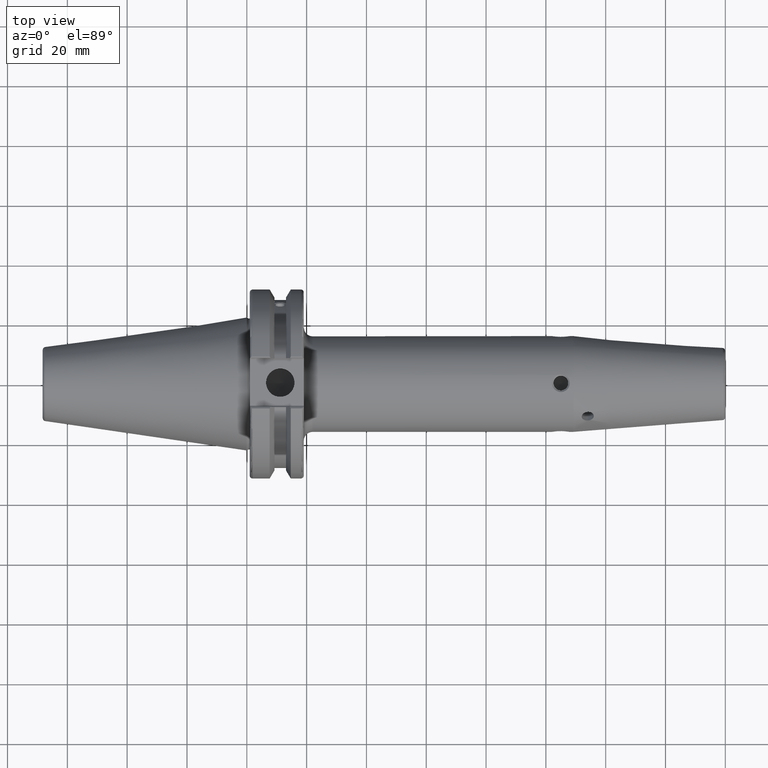
[diagram: clean part render]
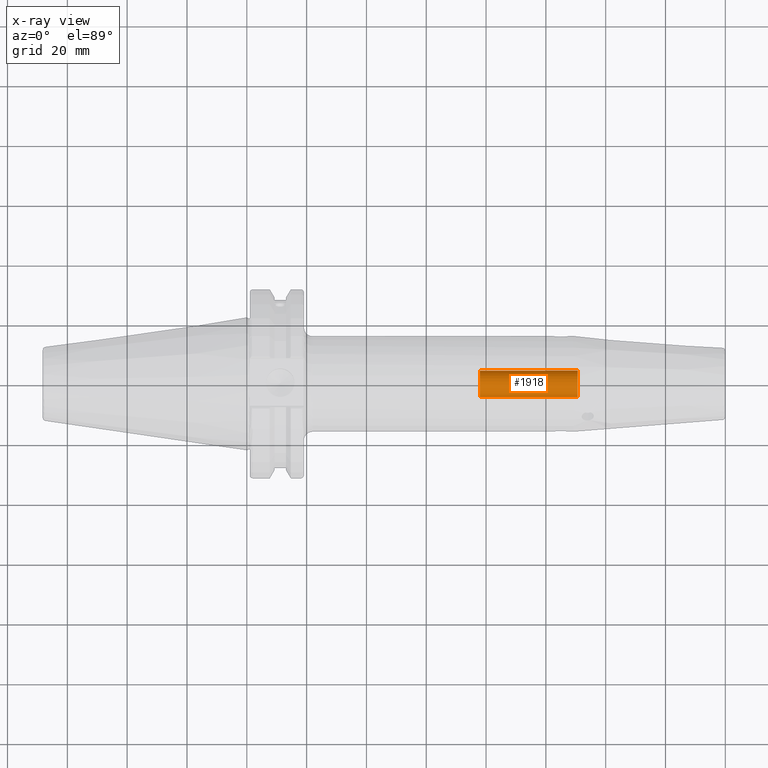
[diagram: x-ray — body ghosted, one internal face saturated and labeled with its STEP entity id]
A machine part, top view, then the same camera in x-ray: the body is ghosted and one INTERNAL B-rep face — a face not visible from any outside direction — is saturated and labeled: STEP entity #1918.
In plain terms, the highlighted cylindrical surface (bore or boss wall) has radius 4.4587 mm, axis along (1, 0, 0).
Its self-contained STEP definition (entity closure, byte-faithful):
#176=FACE_OUTER_BOUND('',#294,.T.);
#294=EDGE_LOOP('',(#1410,#1411,#1412,#1413,#1414));
#427=LINE('',#3999,#545);
#545=VECTOR('',#2372,4.458734);
#652=CIRCLE('',#2073,4.458734);
#653=CIRCLE('',#2074,4.458734);
#654=CIRCLE('',#2075,4.458734);
#829=VERTEX_POINT('',#3996);
#830=VERTEX_POINT('',#3998);
#831=VERTEX_POINT('',#4000);
#1048=EDGE_CURVE('',#829,#829,#652,.T.);
#1049=EDGE_CURVE('',#829,#830,#427,.T.);
#1050=EDGE_CURVE('',#831,#830,#653,.T.);
#1051=EDGE_CURVE('',#830,#831,#654,.T.);
#1410=ORIENTED_EDGE('',*,*,#1048,.F.);
#1411=ORIENTED_EDGE('',*,*,#1049,.T.);
#1412=ORIENTED_EDGE('',*,*,#1050,.F.);
#1413=ORIENTED_EDGE('',*,*,#1051,.F.);
#1414=ORIENTED_EDGE('',*,*,#1049,.F.);
#1864=CYLINDRICAL_SURFACE('',#2072,4.458734);
#1918=ADVANCED_FACE('',(#176),#1864,.F.);
#2072=AXIS2_PLACEMENT_3D('',#3995,#2368,#2369);
#2073=AXIS2_PLACEMENT_3D('',#3997,#2370,#2371);
#2074=AXIS2_PLACEMENT_3D('',#4001,#2373,#2374);
#2075=AXIS2_PLACEMENT_3D('',#4002,#2375,#2376);
#2368=DIRECTION('center_axis',(1.,0.,0.));
#2369=DIRECTION('ref_axis',(0.,1.,0.));
#2370=DIRECTION('center_axis',(-1.,0.,0.));
#2371=DIRECTION('ref_axis',(0.,1.,0.));
#2372=DIRECTION('',(-1.,0.,0.));
#2373=DIRECTION('center_axis',(1.,0.,0.));
#2374=DIRECTION('ref_axis',(0.,1.,0.));
#2375=DIRECTION('center_axis',(1.,0.,0.));
#2376=DIRECTION('ref_axis',(0.,1.,0.));
#3995=CARTESIAN_POINT('Origin',(-84.6677593786681,0.,0.));
#3996=CARTESIAN_POINT('',(110.64473154523,-4.458734,5.46037432134947E-16));
#3997=CARTESIAN_POINT('Origin',(110.64473154523,0.,0.));
#3998=CARTESIAN_POINT('',(77.9765163523599,-4.458734,-5.46037432134947E-16));
#3999=CARTESIAN_POINT('',(-84.6677593786681,-4.458734,-5.46037432134947E-16));
#4000=CARTESIAN_POINT('',(77.9765163523599,-5.46037432134947E-16,-4.458734));
#4001=CARTESIAN_POINT('Origin',(77.9765163523599,0.,0.));
#4002=CARTESIAN_POINT('Origin',(77.9765163523599,0.,0.));